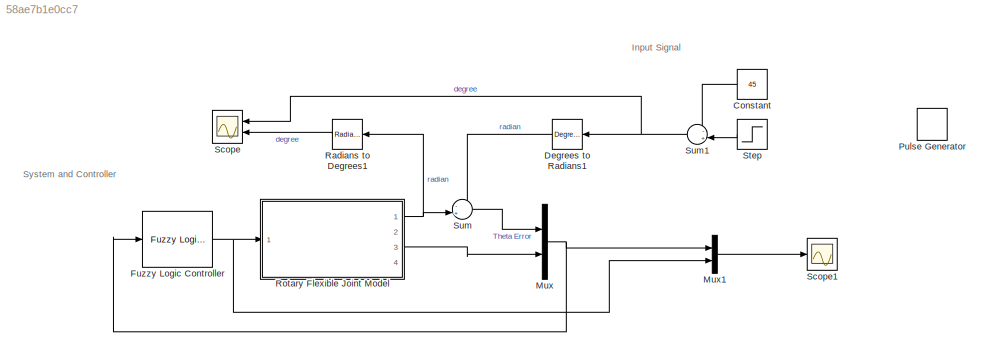
MODEL slx_58ae7b1e0cc7
KIND model
CONFIG AbsTol = auto
CONFIG EnableMultiTasking = off
CONFIG FixedStep = auto
CONFIG MaxStep = auto
CONFIG MinStep = auto
CONFIG RelTol = 1e-3
CONFIG SampleTimeConstraint = Unconstrained
CONFIG Solver = VariableStepAuto
CONFIG SolverName = VariableStepAuto
CONFIG StartTime = 0.0
CONFIG StopTime = 1
BLOCK [Constant] Constant
  NameLocation = top
  Value = 45
BLOCK [Reference] Degrees to Radians1  REF=simulink_extras/Transformations/Degrees to
Radians
  Ports = [1, 1]
  SourceBlock = simulink_extras/Transformations/Degrees to\nRadians
  SourceProductBaseCode = SL
  SourceType = DegreesToRadians
BLOCK [Reference] Fuzzy Logic Controller  REF=fuzblock/Fuzzy Logic   (lib defined in mdl_858b3b3e7478)
Controller
  Ports = [1, 1]
  SourceBlock = fuzblock/Fuzzy Logic \nController
  SourceProductBaseCode = FL
  SourceType = Fuzzy Inference System
BLOCK [Mux] Mux
  DisplayOption = bar
  Inputs = 2
  Ports = [2, 1]
BLOCK [Mux] Mux1
  DisplayOption = bar
  Inputs = 2
  Ports = [2, 1]
BLOCK [DiscretePulseGenerator] Pulse Generator
  Amplitude = 90
  NameLocation = top
  Period = 3
  Ports = [0, 1]
  PulseType = Time based
  PulseWidth = 50
BLOCK [Reference] Radians to Degrees1  REF=simulink_extras/Transformations/Radians
to Degrees
  Ports = [1, 1]
  SourceBlock = simulink_extras/Transformations/Radians\nto Degrees
  SourceProductBaseCode = SL
  SourceType = RadiansToDegrees
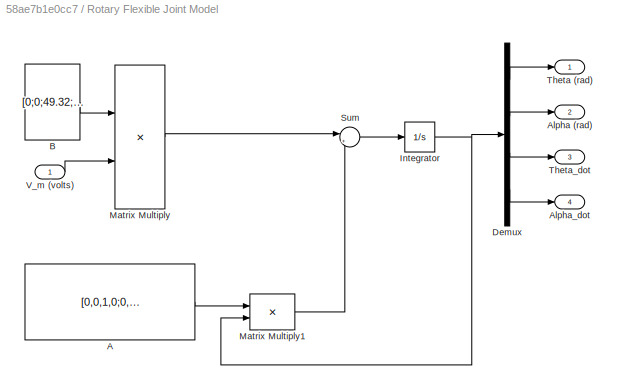
BLOCK [SubSystem] Rotary Flexible Joint Model
  Ports = [1, 4]
  RequestExecContextInheritance = off
BLOCK [Constant] Rotary Flexible Joint Model/A
  Value = [0,0,1,0;0,0,0,1;0,480.19,-24.94,0;0,-836.91,28.02,0]
BLOCK [Outport] Rotary Flexible Joint Model/Alpha (rad)
  Port = 2
BLOCK [Outport] Rotary Flexible Joint Model/Alpha_dot
  Port = 4
BLOCK [Constant] Rotary Flexible Joint Model/B
  Value = [0;0;49.32;-49.32]
  VectorParams1D = off
BLOCK [Demux] Rotary Flexible Joint Model/Demux
  Ports = [1, 4]
BLOCK [Integrator] Rotary Flexible Joint Model/Integrator
  Ports = [1, 1]
BLOCK [Product] Rotary Flexible Joint Model/Matrix Multiply
  Multiplication = Matrix(*)
  Ports = [2, 1]
BLOCK [Product] Rotary Flexible Joint Model/Matrix Multiply1
  Multiplication = Matrix(*)
  Ports = [2, 1]
BLOCK [Sum] Rotary Flexible Joint Model/Sum
  Inputs = |++
  Ports = [2, 1]
BLOCK [Outport] Rotary Flexible Joint Model/Theta (rad)
BLOCK [Outport] Rotary Flexible Joint Model/Theta_dot
  Port = 3
BLOCK [Inport] Rotary Flexible Joint Model/V_m (volts)
BLOCK [Scope] Scope
  Floating = off
  NameLocation = top
  NumInputPorts = 2
  Ports = [2]
  ScopeSpecificationString = Simulink.scopes.TimeScopeBlockCfg('CurrentConfiguration', extmgr.ConfigurationSet(extmgr.Configuration('Core','General UI',true,'FigureColor',[1 1 1]),extmgr.Configuration('Core','Source UI',true),extmgr.Configuration('Sources','WiredSimulink',true),extmgr.Configuration('Visuals','Time Domain',true,'SerializedDisplays',{struct('MinYLimReal','-57.11274','MaxYLimReal','64.01465','YLabelReal','','Min...<+1765ch>
BLOCK [Scope] Scope1
  Floating = off
  NumInputPorts = 1
  Ports = [1]
  ScopeSpecificationString = Simulink.scopes.TimeScopeBlockCfg('CurrentConfiguration', extmgr.ConfigurationSet(extmgr.Configuration('Core','General UI',true,'FigureColor',[1 1 1]),extmgr.Configuration('Core','Source UI',true),extmgr.Configuration('Sources','WiredSimulink',true,'DataLoggingVariableName','ScopeData1'),extmgr.Configuration('Visuals','Time Domain',true,'SerializedDisplays',{struct('MinYLimReal','-3.12496','MaxYLi...<+1896ch>
BLOCK [Step] Step
  After = 90
  NameLocation = top
  SampleTime = 0
  Time = 0.01
BLOCK [Sum] Sum
  Inputs = -+|
  Ports = [2, 1]
BLOCK [Sum] Sum1
  Inputs = -+|
  NameLocation = top
  Ports = [2, 1]
ANNOTATION (root): Input Signal
ANNOTATION (root): System and Controller
LINE Constant:1 -> Sum1:1
LINE Degrees to Radians1:1 -> Sum:1
NET Fuzzy Logic Controller:1 -> Mux1:2, Rotary Flexible Joint Model:1
LINE Mux1:1 -> Scope1:1
NET Mux:1 -> Fuzzy Logic Controller:1, Mux1:1
LINE Radians to Degrees1:1 -> Scope:2
LINE Rotary Flexible Joint Model/A:1 -> Rotary Flexible Joint Model/Matrix Multiply1:1
LINE Rotary Flexible Joint Model/B:1 -> Rotary Flexible Joint Model/Matrix Multiply:1
LINE Rotary Flexible Joint Model/Demux:1 -> Rotary Flexible Joint Model/Theta (rad):1
LINE Rotary Flexible Joint Model/Demux:2 -> Rotary Flexible Joint Model/Alpha (rad):1
LINE Rotary Flexible Joint Model/Demux:3 -> Rotary Flexible Joint Model/Theta_dot:1
LINE Rotary Flexible Joint Model/Demux:4 -> Rotary Flexible Joint Model/Alpha_dot:1
NET Rotary Flexible Joint Model/Integrator:1 -> Rotary Flexible Joint Model/Demux:1, Rotary Flexible Joint Model/Matrix Multiply1:2
LINE Rotary Flexible Joint Model/Matrix Multiply1:1 -> Rotary Flexible Joint Model/Sum:2
LINE Rotary Flexible Joint Model/Matrix Multiply:1 -> Rotary Flexible Joint Model/Sum:1
LINE Rotary Flexible Joint Model/Sum:1 -> Rotary Flexible Joint Model/Integrator:1
LINE Rotary Flexible Joint Model/V_m (volts):1 -> Rotary Flexible Joint Model/Matrix Multiply:2
NET Rotary Flexible Joint Model:1 -> Radians to Degrees1:1, Sum:2
LINE Rotary Flexible Joint Model:3 -> Mux:2
LINE Step:1 -> Sum1:2
NET Sum1:1 -> Degrees to Radians1:1, Scope:1
LINE Sum:1 -> Mux:1
note: NET lines group one-source signal fan-out (src -> all destinations, sorted); 1:1 wires keep LINE
